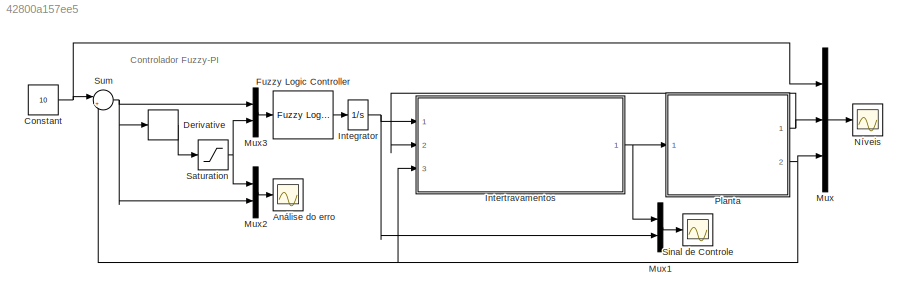
MODEL slx_42800a157ee5
KIND model
CONFIG AbsTol = auto
CONFIG EnableMultiTasking = on
CONFIG FixedStep = auto
CONFIG MaxStep = auto
CONFIG MinStep = auto
CONFIG RelTol = 1e-3
CONFIG SampleTimeConstraint = Unconstrained
CONFIG Solver = ode45
CONFIG SolverName = ode45
CONFIG StartTime = 0.0
CONFIG StopTime = 200
BLOCK [Scope] Análise do erro
  Floating = off
  NumInputPorts = 1
  Ports = [1]
  ScopeSpecificationString = Simulink.scopes.TimeScopeBlockCfg('CurrentConfiguration', extmgr.ConfigurationSet(extmgr.Configuration('Core','General UI',true,'FigureColor',[1 1 1]),extmgr.Configuration('Core','Source UI',true),extmgr.Configuration('Sources','WiredSimulink',true,'DataLoggingVariableName','ScopeData2','DataLoggingLimitDataPoints',true,'DataLoggingSaveFormat','Array','DataLoggingDecimation','1','DataLoggingDecima...<+2875ch>
BLOCK [Constant] Constant
  Value = 10
BLOCK [Derivative] Derivative
BLOCK [Reference] Fuzzy Logic Controller  REF=fuzblock/Fuzzy Logic   (lib defined in mdl_858b3b3e7478)
Controller
  Ports = [1, 1]
  SourceBlock = fuzblock/Fuzzy Logic \nController
  SourceProductBaseCode = FL
  SourceType = Fuzzy Inference System
BLOCK [Integrator] Integrator
  Ports = [1, 1]
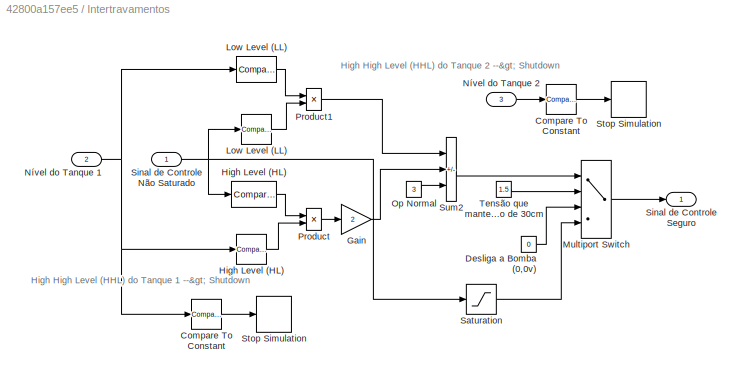
BLOCK [SubSystem] Intertravamentos
  Ports = [3, 1]
  RequestExecContextInheritance = off
BLOCK [Reference] Intertravamentos/Compare To  Constant  REF=simulink/Logic and Bit
Operations/Compare
To Constant
  Ports = [1, 1]
  SourceBlock = simulink/Logic and Bit\nOperations/Compare\nTo Constant
  SourceProductBaseCode = SL
  SourceType = Compare To Constant
BLOCK [Reference] Intertravamentos/Compare To Constant  REF=simulink/Logic and Bit
Operations/Compare
To Constant
  Ports = [1, 1]
  SourceBlock = simulink/Logic and Bit\nOperations/Compare\nTo Constant
  SourceProductBaseCode = SL
  SourceType = Compare To Constant
BLOCK [Constant] Intertravamentos/Desliga a Bomba (0,0v)
  Value = 0
BLOCK [Gain] Intertravamentos/Gain
  Gain = 2
  NameLocation = top
BLOCK [Reference] Intertravamentos/High  Level (HL)  REF=simulink/Logic and Bit
Operations/Compare
To Constant
  NameLocation = top
  Ports = [1, 1]
  SourceBlock = simulink/Logic and Bit\nOperations/Compare\nTo Constant
  SourceProductBaseCode = SL
  SourceType = Compare To Constant
BLOCK [Reference] Intertravamentos/High Level (HL)     REF=simulink/Logic and Bit
Operations/Compare
To Constant
  NameLocation = top
  Ports = [1, 1]
  SourceBlock = simulink/Logic and Bit\nOperations/Compare\nTo Constant
  SourceProductBaseCode = SL
  SourceType = Compare To Constant
BLOCK [Reference] Intertravamentos/Low  Level (LL)  REF=simulink/Logic and Bit
Operations/Compare
To Constant
  NameLocation = top
  Ports = [1, 1]
  SourceBlock = simulink/Logic and Bit\nOperations/Compare\nTo Constant
  SourceProductBaseCode = SL
  SourceType = Compare To Constant
BLOCK [Reference] Intertravamentos/Low Level (LL)  REF=simulink/Logic and Bit
Operations/Compare
To Constant
  NameLocation = top
  Ports = [1, 1]
  SourceBlock = simulink/Logic and Bit\nOperations/Compare\nTo Constant
  SourceProductBaseCode = SL
  SourceType = Compare To Constant
BLOCK [MultiPortSwitch] Intertravamentos/Multiport Switch
  InputSameDT = off
  Ports = [4, 1]
  SaturateOnIntegerOverflow = off
BLOCK [Inport] Intertravamentos/Nível do Tanque 1
  Port = 2
BLOCK [Inport] Intertravamentos/Nível do Tanque 2
  Port = 3
BLOCK [Constant] Intertravamentos/Op Normal
  Value = 3
BLOCK [Product] Intertravamentos/Product
  Ports = [2, 1]
BLOCK [Product] Intertravamentos/Product1
  Ports = [2, 1]
BLOCK [Saturate] Intertravamentos/Saturation
  LowerLimit = -4
  UpperLimit = 4
BLOCK [Inport] Intertravamentos/Sinal de Controle Não Saturado
BLOCK [Outport] Intertravamentos/Sinal de Controle Seguro
BLOCK [Stop] Intertravamentos/Stop  Simulation
BLOCK [Stop] Intertravamentos/Stop Simulation
BLOCK [Sum] Intertravamentos/Sum2
  IconShape = rectangular
  Inputs = --+
  Ports = [3, 1]
BLOCK [Constant] Intertravamentos/Tensão que mantem nível 1 próximo de 30cm
  Value = 1.5
BLOCK [Mux] Mux
  DisplayOption = bar
  Inputs = 3
  Ports = [3, 1]
BLOCK [Mux] Mux1
  DisplayOption = bar
  Inputs = 2
  Ports = [2, 1]
BLOCK [Mux] Mux2
  DisplayOption = bar
  Inputs = 2
  Ports = [2, 1]
BLOCK [Mux] Mux3
  DisplayOption = bar
  Inputs = 2
  Ports = [2, 1]
BLOCK [Scope] Níveis
  Floating = off
  NumInputPorts = 1
  Ports = [1]
  ScopeSpecificationString = Simulink.scopes.TimeScopeBlockCfg('CurrentConfiguration', extmgr.ConfigurationSet(extmgr.Configuration('Core','General UI',true,'FigureColor',[1 1 1]),extmgr.Configuration('Core','Source UI',true),extmgr.Configuration('Sources','WiredSimulink',true,'DataLogging',true,'DataLoggingVariableName','Niveis','DataLoggingLimitDataPoints',true,'DataLoggingSaveFormat','Array','DataLoggingDecimation','1','Da...<+2274ch>
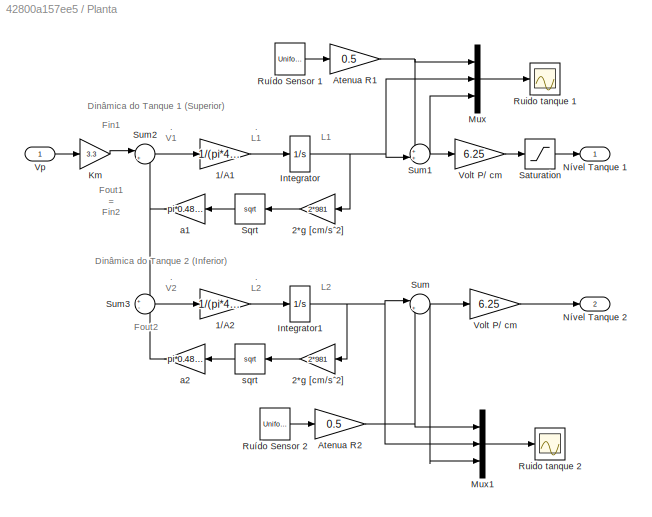
BLOCK [SubSystem] Planta
  Ports = [1, 2]
  RequestExecContextInheritance = off
BLOCK [Gain] Planta/1//A1
  Gain = 1/(pi*4.45^2/4)
BLOCK [Gain] Planta/1//A2
  Gain = 1/(pi*4.45^2/4)
BLOCK [Gain] Planta/2*g  [cm//sˆ2]
  Gain = 2*981
BLOCK [Gain] Planta/2*g [cm//sˆ2]
  Gain = 2*981
BLOCK [Gain] Planta/Atenua R1
  Gain = 0.5
BLOCK [Gain] Planta/Atenua R2
  Gain = 0.5
BLOCK [Integrator] Planta/Integrator
  LimitOutput = on
  LowerSaturationLimit = 0
  Ports = [1, 1]
  UpperSaturationLimit = 32
BLOCK [Integrator] Planta/Integrator1
  LimitOutput = on
  LowerSaturationLimit = 0
  Ports = [1, 1]
  UpperSaturationLimit = 32
BLOCK [Gain] Planta/Km
  Gain = 3.3
BLOCK [Mux] Planta/Mux
  DisplayOption = bar
  Inputs = 3
  Ports = [3, 1]
BLOCK [Mux] Planta/Mux1
  DisplayOption = bar
  Inputs = 3
  Ports = [3, 1]
BLOCK [Outport] Planta/Nível Tanque 1
BLOCK [Outport] Planta/Nível Tanque 2
  Port = 2
BLOCK [Scope] Planta/Ruido tanque 1
  Floating = off
  NumInputPorts = 1
  Ports = [1]
  ScopeSpecificationString = C++SS(StrPVP('Location','[363, 254, 1361, 709]'),StrPVP('Open','off'),MxPVP('AxesTitles',54,'struct(''axes1'',''%<SignalLabel>'')'),MxPVP('ScopeGraphics',57,'struct(''FigureColor'',''[0.5 0.5 0.5]'',''AxesColor'',''[0 0 0]'',''AxesTickColor'',''[1 1 1]'',''LineColors'',''[1 1 0;1 0 1;0 1 1;1 0 0;0 1 0;0 0 1]'',''LineStyles'',''-|-|-|-|-|-'',''LineWidths'',''[0.5 0.5 0.5 0.5 0.5 0.5]'',''MarkerStyl...<+289ch>
BLOCK [Scope] Planta/Ruido tanque 2
  Floating = off
  NumInputPorts = 1
  Ports = [1]
  ScopeSpecificationString = C++SS(StrPVP('Location','[363, 254, 1361, 709]'),StrPVP('Open','off'),MxPVP('AxesTitles',54,'struct(''axes1'',''%<SignalLabel>'')'),MxPVP('ScopeGraphics',57,'struct(''FigureColor'',''[0.5 0.5 0.5]'',''AxesColor'',''[0 0 0]'',''AxesTickColor'',''[1 1 1]'',''LineColors'',''[1 1 0;1 0 1;0 1 1;1 0 0;0 1 0;0 0 1]'',''LineStyles'',''-|-|-|-|-|-'',''LineWidths'',''[0.5 0.5 0.5 0.5 0.5 0.5]'',''MarkerStyl...<+289ch>
BLOCK [UniformRandomNumber] Planta/Ruído Sensor 1
  Maximum = 0.01
  Minimum = -0.01
  SampleTime = 0.5
  Seed = round(rand(1)*100)
BLOCK [UniformRandomNumber] Planta/Ruído Sensor 2
  Maximum = 0.02
  Minimum = -0.02
  SampleTime = 0.5
  Seed = round(rand(1)*100)
BLOCK [Saturate] Planta/Saturation
  LowerLimit = -2
  UpperLimit = 35
BLOCK [Sqrt] Planta/Sqrt
BLOCK [Sum] Planta/Sum
  Inputs = |++
  Ports = [2, 1]
BLOCK [Sum] Planta/Sum1
  Inputs = ++|
  Ports = [2, 1]
BLOCK [Sum] Planta/Sum2
  Inputs = |+-
  Ports = [2, 1]
BLOCK [Sum] Planta/Sum3
  Inputs = +-
  Ports = [2, 1]
BLOCK [Gain] Planta/Volt  P// cm
  Gain = 6.25
BLOCK [Gain] Planta/Volt P// cm
  Gain = 6.25
BLOCK [Inport] Planta/Vp
BLOCK [Gain] Planta/a1
  Gain = pi*0.48^2/4
BLOCK [Gain] Planta/a2
  Gain = pi*0.48^2/4
BLOCK [Sqrt] Planta/sqrt
BLOCK [Saturate] Saturation
  LowerLimit = -1
  UpperLimit = 1
  ZeroCross = off
BLOCK [Scope] Sinal de Controle
  Floating = off
  NumInputPorts = 1
  Ports = [1]
  ScopeSpecificationString = Simulink.scopes.TimeScopeBlockCfg('CurrentConfiguration', extmgr.ConfigurationSet(extmgr.Configuration('Core','General UI',true,'FigureColor',[1 1 1]),extmgr.Configuration('Core','Source UI',true),extmgr.Configuration('Sources','WiredSimulink',true,'DataLoggingVariableName','ControlSignal','DataLoggingLimitDataPoints',true,'DataLoggingSaveFormat','Array','DataLoggingDecimation','1','DataLoggingDec...<+2108ch>
BLOCK [Sum] Sum
  Inputs = |+-
  Ports = [2, 1]
ANNOTATION (root): Controlador Fuzzy-PI
ANNOTATION Intertravamentos: High High Level (HHL) do Tanque 1 --> Shutdown
ANNOTATION Intertravamentos: High High Level (HHL) do Tanque 2 --> Shutdown
ANNOTATION Planta: . L1
ANNOTATION Planta: . L2
ANNOTATION Planta: . V1
ANNOTATION Planta: . V2
ANNOTATION Planta: Fout1 = Fin2
ANNOTATION Planta: Dinâmica do Tanque 1 (Superior)
ANNOTATION Planta: Dinâmica do Tanque 2 (Inferior)
ANNOTATION Planta: Fin1
ANNOTATION Planta: Fout2
ANNOTATION Planta: L1
ANNOTATION Planta: L2
NET Constant:1 -> Mux:1, Sum:1
LINE Derivative:1 -> Saturation:1
LINE Fuzzy Logic Controller:1 -> Integrator:1
NET Integrator:1 -> Intertravamentos:1, Mux1:2
LINE Intertravamentos/Compare To  Constant:1 -> Intertravamentos/Stop  Simulation:1
LINE Intertravamentos/Compare To Constant:1 -> Intertravamentos/Stop Simulation:1
LINE Intertravamentos/Desliga a Bomba (0,0v):1 -> Intertravamentos/Multiport Switch:3
LINE Intertravamentos/Gain:1 -> Intertravamentos/Sum2:2
LINE Intertravamentos/High  Level (HL):1 -> Intertravamentos/Product:1
LINE Intertravamentos/High Level (HL)   :1 -> Intertravamentos/Product:2
LINE Intertravamentos/Low  Level (LL):1 -> Intertravamentos/Product1:2
LINE Intertravamentos/Low Level (LL):1 -> Intertravamentos/Product1:1
LINE Intertravamentos/Multiport Switch:1 -> Intertravamentos/Sinal de Controle Seguro:1
NET Intertravamentos/Nível do Tanque 1:1 -> Intertravamentos/Compare To  Constant:1, Intertravamentos/High Level (HL)   :1, Intertravamentos/Low Level (LL):1
LINE Intertravamentos/Nível do Tanque 2:1 -> Intertravamentos/Compare To Constant:1
LINE Intertravamentos/Op Normal:1 -> Intertravamentos/Sum2:3
LINE Intertravamentos/Product1:1 -> Intertravamentos/Sum2:1
LINE Intertravamentos/Product:1 -> Intertravamentos/Gain:1
LINE Intertravamentos/Saturation:1 -> Intertravamentos/Multiport Switch:4
NET Intertravamentos/Sinal de Controle Não Saturado:1 -> Intertravamentos/High  Level (HL):1, Intertravamentos/Low  Level (LL):1, Intertravamentos/Saturation:1
LINE Intertravamentos/Sum2:1 -> Intertravamentos/Multiport Switch:1
LINE Intertravamentos/Tensão que mantem nível 1 próximo de 30cm:1 -> Intertravamentos/Multiport Switch:2
NET Intertravamentos:1 -> Mux1:1, Planta:1
LINE Mux1:1 -> Sinal de Controle:1
LINE Mux2:1 -> Análise do erro:1
LINE Mux3:1 -> Fuzzy Logic Controller:1
LINE Mux:1 -> Níveis:1
LINE Planta/1//A1:1 -> Planta/Integrator:1
LINE Planta/1//A2:1 -> Planta/Integrator1:1
LINE Planta/2*g  [cm//sˆ2]:1 -> Planta/sqrt:1
LINE Planta/2*g [cm//sˆ2]:1 -> Planta/Sqrt:1
NET Planta/Atenua R1:1 -> Planta/Mux:1, Planta/Sum1:1
NET Planta/Atenua R2:1 -> Planta/Mux1:1, Planta/Sum:2
NET Planta/Integrator1:1 -> Planta/2*g  [cm//sˆ2]:1, Planta/Mux1:2, Planta/Sum:1
NET Planta/Integrator:1 -> Planta/2*g [cm//sˆ2]:1, Planta/Mux:2, Planta/Sum1:2
LINE Planta/Km:1 -> Planta/Sum2:1
LINE Planta/Mux1:1 -> Planta/Ruido tanque 2:1
LINE Planta/Mux:1 -> Planta/Ruido tanque 1:1
LINE Planta/Ruído Sensor 1:1 -> Planta/Atenua R1:1
LINE Planta/Ruído Sensor 2:1 -> Planta/Atenua R2:1
LINE Planta/Saturation:1 -> Planta/Nível Tanque 1:1
LINE Planta/Sqrt:1 -> Planta/a1:1
NET Planta/Sum1:1 -> Planta/Mux:3, Planta/Volt P// cm:1
LINE Planta/Sum2:1 -> Planta/1//A1:1
LINE Planta/Sum3:1 -> Planta/1//A2:1
NET Planta/Sum:1 -> Planta/Mux1:3, Planta/Volt  P// cm:1
LINE Planta/Volt  P// cm:1 -> Planta/Nível Tanque 2:1
LINE Planta/Volt P// cm:1 -> Planta/Saturation:1
LINE Planta/Vp:1 -> Planta/Km:1
NET Planta/a1:1 -> Planta/Sum2:2, Planta/Sum3:1
LINE Planta/a2:1 -> Planta/Sum3:2
LINE Planta/sqrt:1 -> Planta/a2:1
NET Planta:1 -> Intertravamentos:2, Mux:2
NET Planta:2 -> Intertravamentos:3, Mux:3, Sum:2
NET Saturation:1 -> Mux2:1, Mux3:2
NET Sum:1 -> Derivative:1, Mux2:2, Mux3:1
note: NET lines group one-source signal fan-out (src -> all destinations, sorted); 1:1 wires keep LINE
